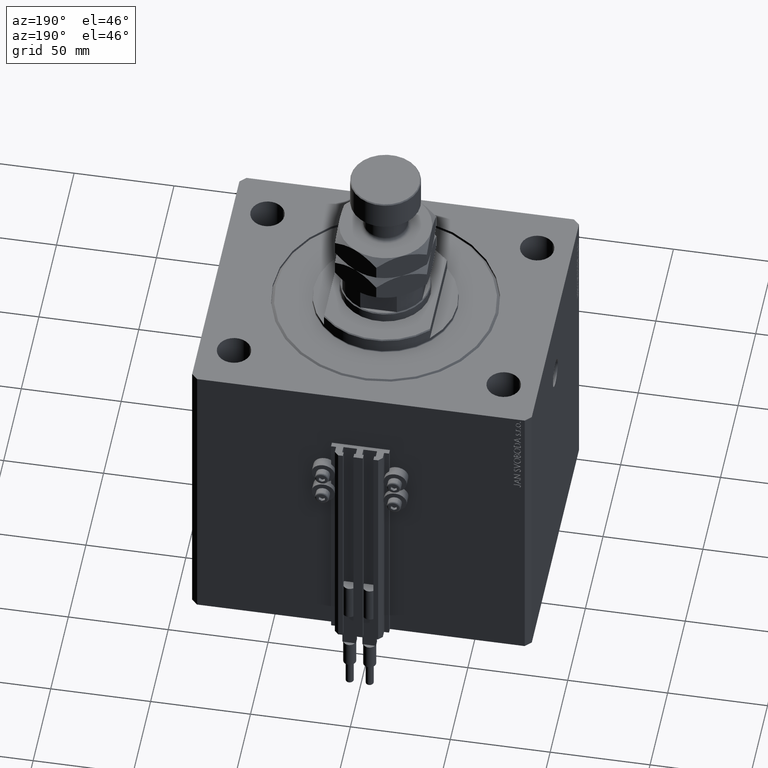
[diagram: clean part render]
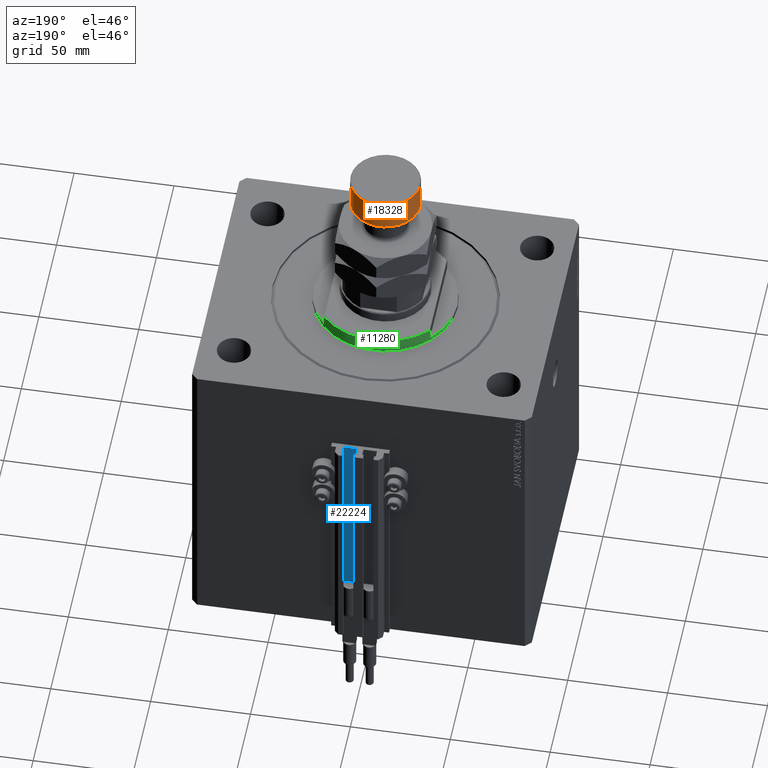
[diagram: same view with three faces highlighted in distinct colors, each labeled with its STEP entity id]
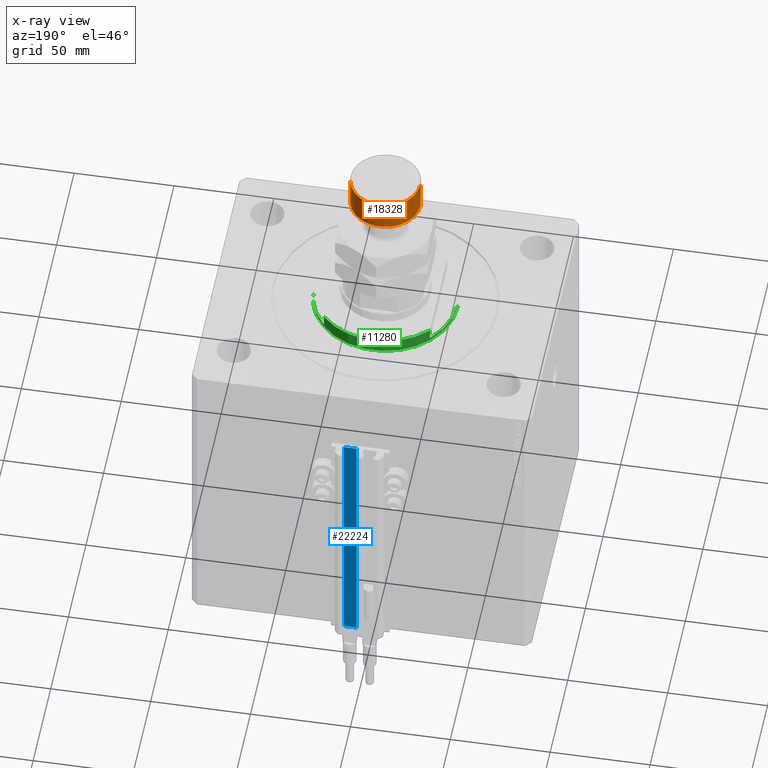
[diagram: x-ray of the same camera — body ghosted, the three highlighted faces saturated]
A machine part, auxiliary view with three faces highlighted in distinct colors.
The next image is the same camera in x-ray (body ghosted, the three faces saturated) — at least one of them is partly hidden behind the body in this view.
Their STEP definitions:

[orange] entity #18328 — the highlighted cylindrical surface (edge-blend (fillet) strip) has radius 17.5 mm, axis along (-0, -0, -1).
#2148 = DIRECTION ( 'NONE',  ( -0.000000000000000000, -0.000000000000000000, -1.000000000000000000 ) ) ;
#2965 = DIRECTION ( 'NONE',  ( 1.000000000000000000, 0.000000000000000000, 0.000000000000000000 ) ) ;
#3142 = EDGE_LOOP ( 'NONE', ( #47544, #16549, #26350, #20431 ) ) ;
#3944 = CARTESIAN_POINT ( 'NONE',  ( 0.000000000000000000, 0.000000000000000000, 59.50000000000000000 ) ) ;
#6797 = CARTESIAN_POINT ( 'NONE',  ( 0.000000000000000000, 0.000000000000000000, 44.50000000000000000 ) ) ;
#7051 = DIRECTION ( 'NONE',  ( 1.000000000000000000, 0.000000000000000000, 0.000000000000000000 ) ) ;
#9152 = CIRCLE ( 'NONE', #25278, 17.50000000000000355 ) ;
#9228 = EDGE_CURVE ( 'NONE', #34496, #47454, #41241, .T. ) ;
#10913 = DIRECTION ( 'NONE',  ( -0.000000000000000000, -0.000000000000000000, -1.000000000000000000 ) ) ;
#11746 = CIRCLE ( 'NONE', #48014, 17.50000000000000355 ) ;
#14447 = FACE_OUTER_BOUND ( 'NONE', #3142, .T. ) ;
#14463 = DIRECTION ( 'NONE',  ( -0.000000000000000000, -0.000000000000000000, -1.000000000000000000 ) ) ;
#14694 = CYLINDRICAL_SURFACE ( 'NONE', #26179, 17.50000000000000355 ) ;
#16549 = ORIENTED_EDGE ( 'NONE', *, *, #39774, .T. ) ;
#18217 = VERTEX_POINT ( 'NONE', #34155 ) ;
#18328 = ADVANCED_FACE ( 'NONE', ( #14447 ), #14694, .T. ) ;
#19979 = EDGE_CURVE ( 'NONE', #34496, #28843, #11746, .T. ) ;
#20431 = ORIENTED_EDGE ( 'NONE', *, *, #9228, .F. ) ;
#20462 = CARTESIAN_POINT ( 'NONE',  ( -17.50000000000000355, 0.000000000000000000, 44.50000000000000000 ) ) ;
#23577 = VECTOR ( 'NONE', #2148, 1000.000000000000000 ) ;
#25278 = AXIS2_PLACEMENT_3D ( 'NONE', #6797, #29786, #7051 ) ;
#26106 = LINE ( 'NONE', #48840, #23577 ) ;
#26179 = AXIS2_PLACEMENT_3D ( 'NONE', #30124, #10913, #31124 ) ;
#26350 = ORIENTED_EDGE ( 'NONE', *, *, #42030, .T. ) ;
#28843 = VERTEX_POINT ( 'NONE', #29754 ) ;
#29754 = CARTESIAN_POINT ( 'NONE',  ( 17.50000000000000355, 2.143131898507868643E-15, 59.50000000000000000 ) ) ;
#29786 = DIRECTION ( 'NONE',  ( -0.000000000000000000, -0.000000000000000000, 1.000000000000000000 ) ) ;
#30124 = CARTESIAN_POINT ( 'NONE',  ( 0.000000000000000000, 0.000000000000000000, 60.00000000000000000 ) ) ;
#31124 = DIRECTION ( 'NONE',  ( -1.000000000000000000, 0.000000000000000000, 0.000000000000000000 ) ) ;
#34070 = VECTOR ( 'NONE', #14463, 1000.000000000000000 ) ;
#34087 = CARTESIAN_POINT ( 'NONE',  ( -17.50000000000000355, 0.000000000000000000, 59.50000000000000000 ) ) ;
#34155 = CARTESIAN_POINT ( 'NONE',  ( 17.50000000000000355, 2.143131898507868643E-15, 44.50000000000000000 ) ) ;
#34496 = VERTEX_POINT ( 'NONE', #34087 ) ;
#38532 = DIRECTION ( 'NONE',  ( 0.000000000000000000, 0.000000000000000000, -1.000000000000000000 ) ) ;
#39774 = EDGE_CURVE ( 'NONE', #28843, #18217, #26106, .T. ) ;
#41241 = LINE ( 'NONE', #49328, #34070 ) ;
#42030 = EDGE_CURVE ( 'NONE', #18217, #47454, #9152, .T. ) ;
#47454 = VERTEX_POINT ( 'NONE', #20462 ) ;
#47544 = ORIENTED_EDGE ( 'NONE', *, *, #19979, .T. ) ;
#48014 = AXIS2_PLACEMENT_3D ( 'NONE', #3944, #38532, #2965 ) ;
#48840 = CARTESIAN_POINT ( 'NONE',  ( 17.50000000000000355, 2.143131898507868643E-15, 60.00000000000000000 ) ) ;
#49328 = CARTESIAN_POINT ( 'NONE',  ( -17.50000000000000355, 0.000000000000000000, 60.00000000000000000 ) ) ;

[blue] entity #22224 — the highlighted planar face has unit normal (0, 1, 0).
#1857 = FACE_OUTER_BOUND ( 'NONE', #7661, .T. ) ;
#2405 = DIRECTION ( 'NONE',  ( -1.000000000000000000, 0.000000000000000000, 0.000000000000000000 ) ) ;
#2608 = PLANE ( 'NONE',  #7789 ) ;
#4080 = EDGE_CURVE ( 'NONE', #22692, #26872, #11421, .T. ) ;
#5454 = EDGE_CURVE ( 'NONE', #26872, #28921, #28990, .T. ) ;
#5500 = ORIENTED_EDGE ( 'NONE', *, *, #5454, .T. ) ;
#6684 = CARTESIAN_POINT ( 'NONE',  ( 8.199999999999999289, 72.00000000000001421, -33.00000000000000000 ) ) ;
#7661 = EDGE_LOOP ( 'NONE', ( #8111, #44307, #33822, #5500 ) ) ;
#7789 = AXIS2_PLACEMENT_3D ( 'NONE', #17224, #25325, #47804 ) ;
#8111 = ORIENTED_EDGE ( 'NONE', *, *, #16436, .F. ) ;
#9244 = DIRECTION ( 'NONE',  ( 0.000000000000000000, 0.000000000000000000, 1.000000000000000000 ) ) ;
#11421 = LINE ( 'NONE', #26842, #46007 ) ;
#13583 = CARTESIAN_POINT ( 'NONE',  ( 8.199999999999999289, 72.00000000000001421, -160.0000000000000000 ) ) ;
#16436 = EDGE_CURVE ( 'NONE', #41190, #28921, #36983, .T. ) ;
#17224 = CARTESIAN_POINT ( 'NONE',  ( 8.199999999999999289, 72.00000000000001421, -160.0000000000000000 ) ) ;
#17592 = DIRECTION ( 'NONE',  ( 0.000000000000000000, 0.000000000000000000, 1.000000000000000000 ) ) ;
#20600 = LINE ( 'NONE', #32006, #44533 ) ;
#22224 = ADVANCED_FACE ( 'NONE', ( #1857 ), #2608, .T. ) ;
#22692 = VERTEX_POINT ( 'NONE', #13583 ) ;
#23454 = CARTESIAN_POINT ( 'NONE',  ( 1.800000000000000933, 72.00000000000001421, -160.0000000000000000 ) ) ;
#25325 = DIRECTION ( 'NONE',  ( 0.000000000000000000, 1.000000000000000000, -0.000000000000000000 ) ) ;
#26842 = CARTESIAN_POINT ( 'NONE',  ( 8.199999999999999289, 72.00000000000001421, -160.0000000000000000 ) ) ;
#26872 = VERTEX_POINT ( 'NONE', #23454 ) ;
#28921 = VERTEX_POINT ( 'NONE', #32470 ) ;
#28990 = LINE ( 'NONE', #41340, #42041 ) ;
#31228 = EDGE_CURVE ( 'NONE', #22692, #41190, #20600, .T. ) ;
#32006 = CARTESIAN_POINT ( 'NONE',  ( 8.199999999999999289, 72.00000000000001421, -160.0000000000000000 ) ) ;
#32470 = CARTESIAN_POINT ( 'NONE',  ( 1.800000000000000933, 72.00000000000001421, -33.00000000000000000 ) ) ;
#33822 = ORIENTED_EDGE ( 'NONE', *, *, #4080, .T. ) ;
#36983 = LINE ( 'NONE', #6684, #49536 ) ;
#38457 = DIRECTION ( 'NONE',  ( -1.000000000000000000, 0.000000000000000000, 0.000000000000000000 ) ) ;
#41190 = VERTEX_POINT ( 'NONE', #46163 ) ;
#41340 = CARTESIAN_POINT ( 'NONE',  ( 1.800000000000000933, 72.00000000000001421, -160.0000000000000000 ) ) ;
#42041 = VECTOR ( 'NONE', #17592, 1000.000000000000000 ) ;
#44307 = ORIENTED_EDGE ( 'NONE', *, *, #31228, .F. ) ;
#44533 = VECTOR ( 'NONE', #9244, 1000.000000000000000 ) ;
#46007 = VECTOR ( 'NONE', #38457, 1000.000000000000000 ) ;
#46163 = CARTESIAN_POINT ( 'NONE',  ( 8.199999999999999289, 72.00000000000001421, -33.00000000000000000 ) ) ;
#47804 = DIRECTION ( 'NONE',  ( 0.000000000000000000, 0.000000000000000000, 1.000000000000000000 ) ) ;
#49536 = VECTOR ( 'NONE', #2405, 1000.000000000000000 ) ;

[green] entity #11280 — the highlighted cylindrical surface (partial cylindrical patch) has radius 36 mm, axis along (0, 0, -1).
#601 = CYLINDRICAL_SURFACE ( 'NONE', #39630, 36.00000000000000000 ) ;
#900 = ORIENTED_EDGE ( 'NONE', *, *, #16419, .T. ) ;
#3060 = CIRCLE ( 'NONE', #45804, 36.00000000000000000 ) ;
#5222 = EDGE_LOOP ( 'NONE', ( #10388, #900, #27582, #28660, #13813, #37744, #33128, #7918 ) ) ;
#6132 = VECTOR ( 'NONE', #10526, 1000.000000000000000 ) ;
#6590 = DIRECTION ( 'NONE',  ( -1.000000000000000000, 0.000000000000000000, 0.000000000000000000 ) ) ;
#6635 = AXIS2_PLACEMENT_3D ( 'NONE', #33591, #48990, #22197 ) ;
#7918 = ORIENTED_EDGE ( 'NONE', *, *, #49837, .T. ) ;
#8253 = CIRCLE ( 'NONE', #47756, 36.00000000000000000 ) ;
#8893 = DIRECTION ( 'NONE',  ( -0.000000000000000000, -0.000000000000000000, 1.000000000000000000 ) ) ;
#9505 = EDGE_CURVE ( 'NONE', #24965, #25652, #8253, .T. ) ;
#9614 = DIRECTION ( 'NONE',  ( -0.000000000000000000, -0.000000000000000000, 1.000000000000000000 ) ) ;
#10070 = AXIS2_PLACEMENT_3D ( 'NONE', #14149, #33857, #37389 ) ;
#10388 = ORIENTED_EDGE ( 'NONE', *, *, #9505, .F. ) ;
#10526 = DIRECTION ( 'NONE',  ( -0.000000000000000000, -0.000000000000000000, 1.000000000000000000 ) ) ;
#11280 = ADVANCED_FACE ( 'NONE', ( #47535 ), #601, .T. ) ;
#11911 = EDGE_CURVE ( 'NONE', #22554, #49573, #42893, .T. ) ;
#12065 = CARTESIAN_POINT ( 'NONE',  ( -36.00000000000000000, 4.408728476930470856E-15, -2.000000000000000000 ) ) ;
#13813 = ORIENTED_EDGE ( 'NONE', *, *, #35549, .F. ) ;
#13985 = DIRECTION ( 'NONE',  ( -0.000000000000000000, -0.000000000000000000, 1.000000000000000000 ) ) ;
#14149 = CARTESIAN_POINT ( 'NONE',  ( 0.000000000000000000, 0.000000000000000000, -7.499999999999992895 ) ) ;
#14311 = LINE ( 'NONE', #29744, #6132 ) ;
#14979 = EDGE_CURVE ( 'NONE', #21582, #38959, #31467, .T. ) ;
#16419 = EDGE_CURVE ( 'NONE', #24965, #22554, #21564, .T. ) ;
#16528 = CARTESIAN_POINT ( 'NONE',  ( 26.50000000000000000, 24.36698586202240691, -8.000000000000000000 ) ) ;
#20499 = DIRECTION ( 'NONE',  ( 1.000000000000000000, 0.000000000000000000, 0.000000000000000000 ) ) ;
#21476 = CARTESIAN_POINT ( 'NONE',  ( -26.50000000000000000, 24.36698586202240691, -8.000000000000000000 ) ) ;
#21564 = LINE ( 'NONE', #22324, #43869 ) ;
#21582 = VERTEX_POINT ( 'NONE', #48669 ) ;
#21658 = EDGE_CURVE ( 'NONE', #30372, #49573, #14311, .T. ) ;
#21985 = VERTEX_POINT ( 'NONE', #37250 ) ;
#22197 = DIRECTION ( 'NONE',  ( 1.000000000000000000, 0.000000000000000000, 0.000000000000000000 ) ) ;
#22324 = CARTESIAN_POINT ( 'NONE',  ( -36.00000000000000000, 4.408728476930470856E-15, -8.000000000000000000 ) ) ;
#22481 = DIRECTION ( 'NONE',  ( 0.000000000000000000, 0.000000000000000000, -1.000000000000000000 ) ) ;
#22554 = VERTEX_POINT ( 'NONE', #28253 ) ;
#23905 = DIRECTION ( 'NONE',  ( 0.000000000000000000, 0.000000000000000000, -1.000000000000000000 ) ) ;
#24965 = VERTEX_POINT ( 'NONE', #12065 ) ;
#25652 = VERTEX_POINT ( 'NONE', #44496 ) ;
#25781 = CARTESIAN_POINT ( 'NONE',  ( 26.50000000000000000, 24.36698586202240691, -2.000000000000000000 ) ) ;
#27582 = ORIENTED_EDGE ( 'NONE', *, *, #11911, .T. ) ;
#28253 = CARTESIAN_POINT ( 'NONE',  ( -36.00000000000000000, 4.408728476930470856E-15, -0.5000000000000004441 ) ) ;
#28660 = ORIENTED_EDGE ( 'NONE', *, *, #21658, .F. ) ;
#29744 = CARTESIAN_POINT ( 'NONE',  ( 36.00000000000000000, 0.000000000000000000, -8.000000000000000000 ) ) ;
#30372 = VERTEX_POINT ( 'NONE', #37513 ) ;
#31467 = LINE ( 'NONE', #16528, #38956 ) ;
#33128 = ORIENTED_EDGE ( 'NONE', *, *, #48404, .T. ) ;
#33137 = DIRECTION ( 'NONE',  ( -0.000000000000000000, -0.000000000000000000, 1.000000000000000000 ) ) ;
#33591 = CARTESIAN_POINT ( 'NONE',  ( 0.000000000000000000, 0.000000000000000000, -0.5000000000000004441 ) ) ;
#33857 = DIRECTION ( 'NONE',  ( 0.000000000000000000, 0.000000000000000000, 1.000000000000000000 ) ) ;
#35549 = EDGE_CURVE ( 'NONE', #38959, #30372, #3060, .T. ) ;
#37250 = CARTESIAN_POINT ( 'NONE',  ( -26.50000000000000000, 24.36698586202241046, -7.499999999999995559 ) ) ;
#37389 = DIRECTION ( 'NONE',  ( -1.000000000000000000, 0.000000000000000000, 0.000000000000000000 ) ) ;
#37513 = CARTESIAN_POINT ( 'NONE',  ( 36.00000000000000000, 0.000000000000000000, -2.000000000000000000 ) ) ;
#37744 = ORIENTED_EDGE ( 'NONE', *, *, #14979, .F. ) ;
#38956 = VECTOR ( 'NONE', #33137, 1000.000000000000000 ) ;
#38959 = VERTEX_POINT ( 'NONE', #25781 ) ;
#39211 = CARTESIAN_POINT ( 'NONE',  ( 0.000000000000000000, 0.000000000000000000, -8.000000000000000000 ) ) ;
#39248 = CARTESIAN_POINT ( 'NONE',  ( 36.00000000000000000, 0.000000000000000000, -0.5000000000000004441 ) ) ;
#39630 = AXIS2_PLACEMENT_3D ( 'NONE', #39211, #8893, #20499 ) ;
#42617 = DIRECTION ( 'NONE',  ( -1.000000000000000000, 0.000000000000000000, 0.000000000000000000 ) ) ;
#42893 = CIRCLE ( 'NONE', #6635, 36.00000000000000000 ) ;
#43168 = VECTOR ( 'NONE', #9614, 1000.000000000000000 ) ;
#43869 = VECTOR ( 'NONE', #13985, 1000.000000000000000 ) ;
#44496 = CARTESIAN_POINT ( 'NONE',  ( -26.50000000000000000, 24.36698586202240691, -2.000000000000000000 ) ) ;
#44741 = CIRCLE ( 'NONE', #10070, 36.00000000000000000 ) ;
#44972 = LINE ( 'NONE', #21476, #43168 ) ;
#45219 = CARTESIAN_POINT ( 'NONE',  ( 0.000000000000000000, 0.000000000000000000, -2.000000000000000000 ) ) ;
#45804 = AXIS2_PLACEMENT_3D ( 'NONE', #47135, #23905, #42617 ) ;
#47135 = CARTESIAN_POINT ( 'NONE',  ( 0.000000000000000000, 0.000000000000000000, -2.000000000000000000 ) ) ;
#47535 = FACE_OUTER_BOUND ( 'NONE', #5222, .T. ) ;
#47756 = AXIS2_PLACEMENT_3D ( 'NONE', #45219, #22481, #6590 ) ;
#48404 = EDGE_CURVE ( 'NONE', #21582, #21985, #44741, .T. ) ;
#48669 = CARTESIAN_POINT ( 'NONE',  ( 26.50000000000000000, 24.36698586202241046, -7.499999999999995559 ) ) ;
#48990 = DIRECTION ( 'NONE',  ( -0.000000000000000000, -0.000000000000000000, -1.000000000000000000 ) ) ;
#49573 = VERTEX_POINT ( 'NONE', #39248 ) ;
#49837 = EDGE_CURVE ( 'NONE', #21985, #25652, #44972, .T. ) ;